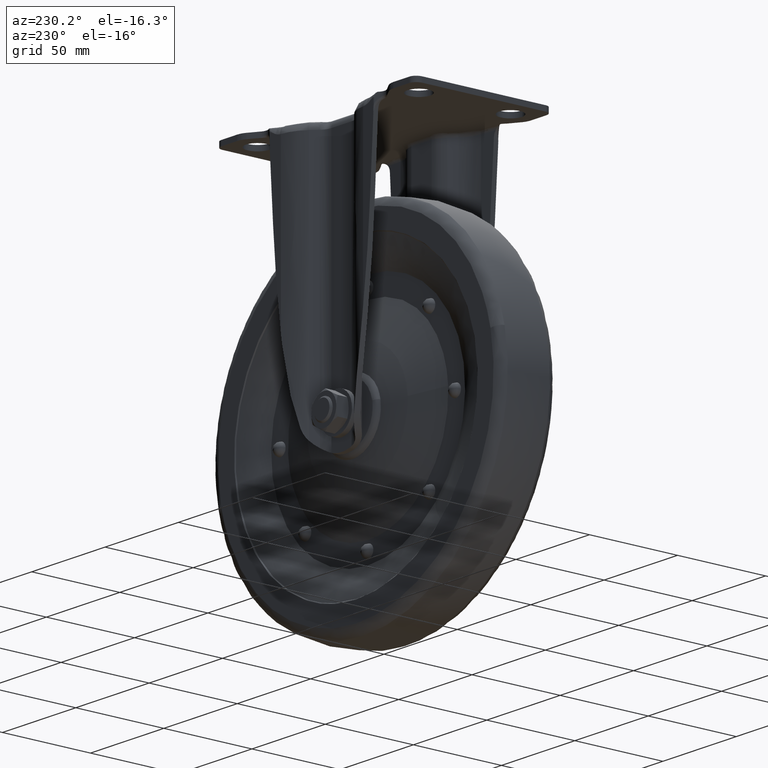
[diagram: clean part render]
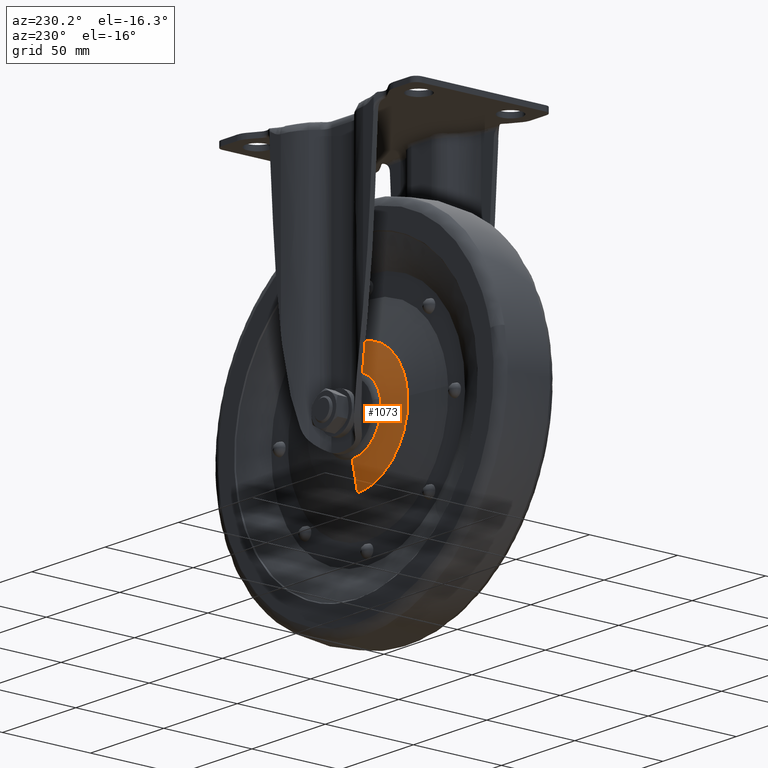
[diagram: same view with one face highlighted and labeled with its STEP entity id]
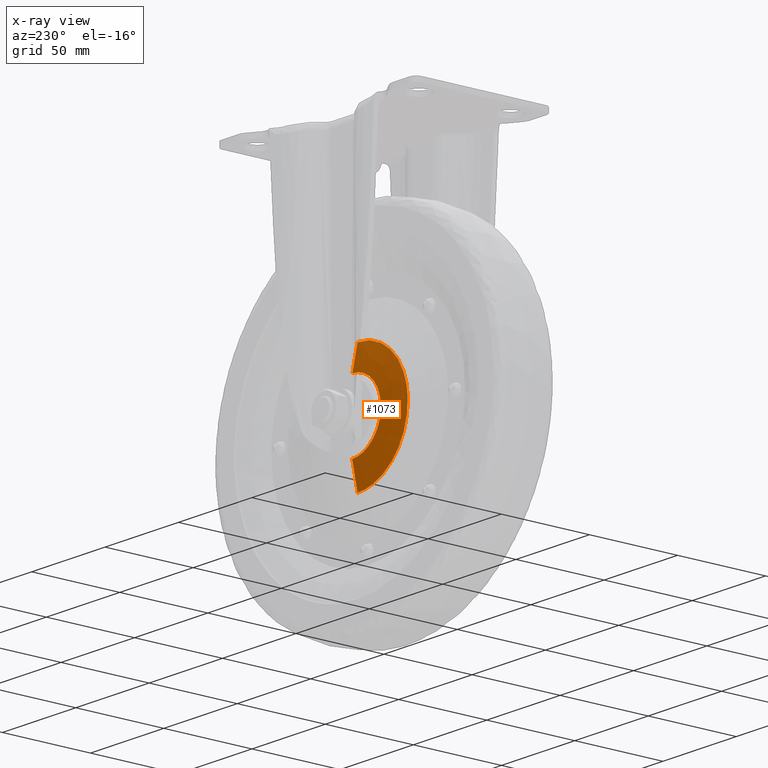
[diagram: x-ray of the same camera — body ghosted, the highlighted face saturated]
A machine part, auxiliary view. The second image highlights one B-rep face of the part: STEP entity #1073.
The next image is the same camera in x-ray: the body ghosted, the highlighted face saturated — about 0% of this face is hidden behind the body in this view.
In plain terms, the highlighted face is a freeform B-spline surface patch.
Its self-contained STEP definition (entity closure, byte-faithful):
#25=CARTESIAN_POINT('',(0.0,15.004487317111440,-101.787148409657900));
#26=VERTEX_POINT('',#25);
#42=CARTESIAN_POINT('',(-34.149057118958211,15.004484576097891,-133.911354190405600));
#43=VERTEX_POINT('',#42);
#44=CARTESIAN_POINT('',(0.0,15.004487317111440,-101.787148409657900));
#45=CARTESIAN_POINT('',(-32.184254595494991,15.004485946574160,-101.787148434285340));
#46=CARTESIAN_POINT('',(-34.149057118958218,15.004484576097891,-133.911354190405600));
#54=(BOUNDED_CURVE()B_SPLINE_CURVE(2,(#44,#45,#46),.UNSPECIFIED.,.F.,.U.)B_SPLINE_CURVE_WITH_KNOTS((3,3),(0.500000000000000,0.739332955998105),.UNSPECIFIED.)CURVE()GEOMETRIC_REPRESENTATION_ITEM()RATIONAL_B_SPLINE_CURVE((1.0,0.719604000598307,0.976072028291414))REPRESENTATION_ITEM(''));
#55=EDGE_CURVE('',#26,#43,#54,.T.);
#122=CARTESIAN_POINT('',(0.0,15.004487317238130,-170.212851589911790));
#123=VERTEX_POINT('',#122);
#169=CARTESIAN_POINT('',(-34.149057118958218,15.004484576097891,-133.911354190405600));
#170=CARTESIAN_POINT('',(-34.212871108776802,15.004484615490647,-134.954702272329480));
#171=CARTESIAN_POINT('',(-34.212871121079019,15.004484657366261,-136.000000047579500));
#172=CARTESIAN_POINT('',(-34.212871523733391,15.004486027965360,-170.212851613078950));
#173=CARTESIAN_POINT('',(0.0,15.004487317238130,-170.212851589911790));
#181=(BOUNDED_CURVE()B_SPLINE_CURVE(2,(#169,#170,#171,#172,#173),.UNSPECIFIED.,.F.,.U.)B_SPLINE_CURVE_WITH_KNOTS((3,2,3),(0.739332955998105,0.750000000000000,1.0),.UNSPECIFIED.)CURVE()GEOMETRIC_REPRESENTATION_ITEM()RATIONAL_B_SPLINE_CURVE((0.976072028291414,0.987502780588240,1.0,0.707106781186547,1.0))REPRESENTATION_ITEM(''));
#182=EDGE_CURVE('',#43,#123,#181,.T.);
#980=CARTESIAN_POINT('',(0.976793341893433,14.787184798563615,-101.060539156616230));
#981=CARTESIAN_POINT('',(0.755015970494486,17.196919396944846,-108.993416513173270));
#982=CARTESIAN_POINT('',(0.524557631290192,18.082276620321093,-117.236808204450970));
#983=CARTESIAN_POINT('',(0.491240970883668,14.787184798563619,-101.060539156616230));
#984=CARTESIAN_POINT('',(0.379706497240693,17.196919396944843,-108.993416513173230));
#985=CARTESIAN_POINT('',(0.263806261803476,18.082276620321096,-117.236808204450910));
#986=CARTESIAN_POINT('',(-34.939460843383763,14.787184798563617,-101.060539156616230));
#987=CARTESIAN_POINT('',(-27.006583486826749,17.196919396944843,-108.993416513173270));
#988=CARTESIAN_POINT('',(-18.763191795549062,18.082276620321096,-117.236808204450970));
#989=CARTESIAN_POINT('',(-34.939460843383777,14.787184798563620,-136.000000000000030));
#990=CARTESIAN_POINT('',(-27.006583486826756,17.196919396944843,-136.0));
#991=CARTESIAN_POINT('',(-18.763191795549066,18.082276620321096,-136.000000000000030));
#992=CARTESIAN_POINT('',(-34.939460843383756,14.787184798563617,-170.939460843383870));
#993=CARTESIAN_POINT('',(-27.006583486826717,17.196919396944843,-163.006583486826740));
#994=CARTESIAN_POINT('',(-18.763191795549020,18.082276620321096,-154.763191795549060));
#995=CARTESIAN_POINT('',(0.491240970883671,14.787184798563617,-170.939460843383840));
#996=CARTESIAN_POINT('',(0.379706497240696,17.196919396944843,-163.006583486826800));
#997=CARTESIAN_POINT('',(0.263806261803477,18.082276620321096,-154.763191795549060));
#998=CARTESIAN_POINT('',(0.976793341893440,14.787184798563624,-170.939460843383870));
#999=CARTESIAN_POINT('',(0.755015970494492,17.196919396944843,-163.006583486826740));
#1000=CARTESIAN_POINT('',(0.524557631290195,18.082276620321100,-154.763191795549090));
#1008=(BOUNDED_SURFACE()B_SPLINE_SURFACE(2,2,((#980,#983,#986,#989,#992,#995,#998),(#981,#984,#987,#990,#993,#996,#999),(#982,#985,#988,#991,#994,#997,#1000)),.UNSPECIFIED.,.F.,.F.,.U.)B_SPLINE_SURFACE_WITH_KNOTS((3,3),(3,1,2,1,3),(0.0,16.705887185881799),(0.0,1.157791883466662,59.047386056799724,116.936980230132800,118.094772113599500),.UNSPECIFIED.)GEOMETRIC_REPRESENTATION_ITEM()RATIONAL_B_SPLINE_SURFACE(((0.940499936825416,0.935054414017733,0.657332750825935,0.929608891210051,0.657332750825935,0.935054414017734,0.940499936825416),(0.947549447421130,0.942063107735925,0.662259783790444,0.936576768050719,0.662259783790444,0.942063107735925,0.947549447421130),(0.963129404185234,0.957552856083654,0.673148902903057,0.951976307982073,0.673148902903057,0.957552856083654,0.963129404185234)))REPRESENTATION_ITEM('')SURFACE());
#1009=CARTESIAN_POINT('',(0.0,18.000000280364329,-116.500000742681810));
#1010=VERTEX_POINT('',#1009);
#1011=CARTESIAN_POINT('',(0.0,15.004487317111439,-101.787148409657870));
#1012=CARTESIAN_POINT('',(0.0,17.132269180722204,-109.015302427265810));
#1013=CARTESIAN_POINT('',(0.0,18.000000280364336,-116.500000742681730));
#1021=(BOUNDED_CURVE()B_SPLINE_CURVE(2,(#1011,#1012,#1013),.UNSPECIFIED.,.F.,.U.)B_SPLINE_CURVE_WITH_KNOTS((3,3),(0.881682946409587,0.932104804659972),.UNSPECIFIED.)CURVE()GEOMETRIC_REPRESENTATION_ITEM()RATIONAL_B_SPLINE_CURVE((0.930259151498040,0.936942288862208,0.950595000198197))REPRESENTATION_ITEM(''));
#1022=EDGE_CURVE('',#26,#1010,#1021,.T.);
#1023=ORIENTED_EDGE('',*,*,#1022,.T.);
#1024=CARTESIAN_POINT('',(-19.199003795981412,18.000000280911451,-132.587050479008410));
#1025=VERTEX_POINT('',#1024);
#1026=CARTESIAN_POINT('',(0.0,18.000000280364329,-116.500000742681810));
#1027=CARTESIAN_POINT('',(-16.339257045304493,18.000000280637899,-116.500000742540150));
#1028=CARTESIAN_POINT('',(-19.199003795981398,18.000000280911451,-132.587050479008350));
#1036=(BOUNDED_CURVE()B_SPLINE_CURVE(2,(#1026,#1027,#1028),.UNSPECIFIED.,.F.,.U.)B_SPLINE_CURVE_WITH_KNOTS((3,3),(0.500000000000000,0.719918253204449),.UNSPECIFIED.)CURVE()GEOMETRIC_REPRESENTATION_ITEM()RATIONAL_B_SPLINE_CURVE((1.0,0.742349739772468,0.937995440880220))REPRESENTATION_ITEM(''));
#1037=EDGE_CURVE('',#1010,#1025,#1036,.T.);
#1038=ORIENTED_EDGE('',*,*,#1037,.T.);
#1039=CARTESIAN_POINT('',(0.0,18.000000280364329,-155.499999257318310));
#1040=VERTEX_POINT('',#1039);
#1041=CARTESIAN_POINT('',(-19.199003795981398,18.000000280911451,-132.587050479008350));
#1042=CARTESIAN_POINT('',(-19.499999261297329,18.000000280891232,-134.280252515940820));
#1043=CARTESIAN_POINT('',(-19.499999261227071,18.000000280867109,-135.999999999739800));
#1044=CARTESIAN_POINT('',(-19.499999260430503,18.000000280593554,-155.499999257199680));
#1045=CARTESIAN_POINT('',(0.0,18.000000280364329,-155.499999257318310));
#1053=(BOUNDED_CURVE()B_SPLINE_CURVE(2,(#1041,#1042,#1043,#1044,#1045),.UNSPECIFIED.,.F.,.U.)B_SPLINE_CURVE_WITH_KNOTS((3,2,3),(0.719918253204449,0.750000000000000,1.0),.UNSPECIFIED.)CURVE()GEOMETRIC_REPRESENTATION_ITEM()RATIONAL_B_SPLINE_CURVE((0.937995440880220,0.964757041414079,1.0,0.707106781186548,1.0))REPRESENTATION_ITEM(''));
#1054=EDGE_CURVE('',#1025,#1040,#1053,.T.);
#1055=ORIENTED_EDGE('',*,*,#1054,.T.);
#1056=CARTESIAN_POINT('',(0.0,15.004487317238137,-170.212851589911790));
#1057=CARTESIAN_POINT('',(0.0,17.132269180748221,-162.984697572509700));
#1058=CARTESIAN_POINT('',(0.0,18.000000280364340,-155.499999257318280));
#1066=(BOUNDED_CURVE()B_SPLINE_CURVE(2,(#1056,#1057,#1058),.UNSPECIFIED.,.F.,.U.)B_SPLINE_CURVE_WITH_KNOTS((3,3),(0.881682946411077,0.932104804659971),.UNSPECIFIED.)CURVE()GEOMETRIC_REPRESENTATION_ITEM()RATIONAL_B_SPLINE_CURVE((0.930259151498435,0.936942288862611,0.950595000198197))REPRESENTATION_ITEM(''));
#1067=EDGE_CURVE('',#123,#1040,#1066,.T.);
#1068=ORIENTED_EDGE('',*,*,#1067,.F.);
#1069=ORIENTED_EDGE('',*,*,#182,.F.);
#1070=ORIENTED_EDGE('',*,*,#55,.F.);
#1071=EDGE_LOOP('',(#1023,#1038,#1055,#1068,#1069,#1070));
#1072=FACE_OUTER_BOUND('',#1071,.T.);
#1073=ADVANCED_FACE('',(#1072),#1008,.T.);